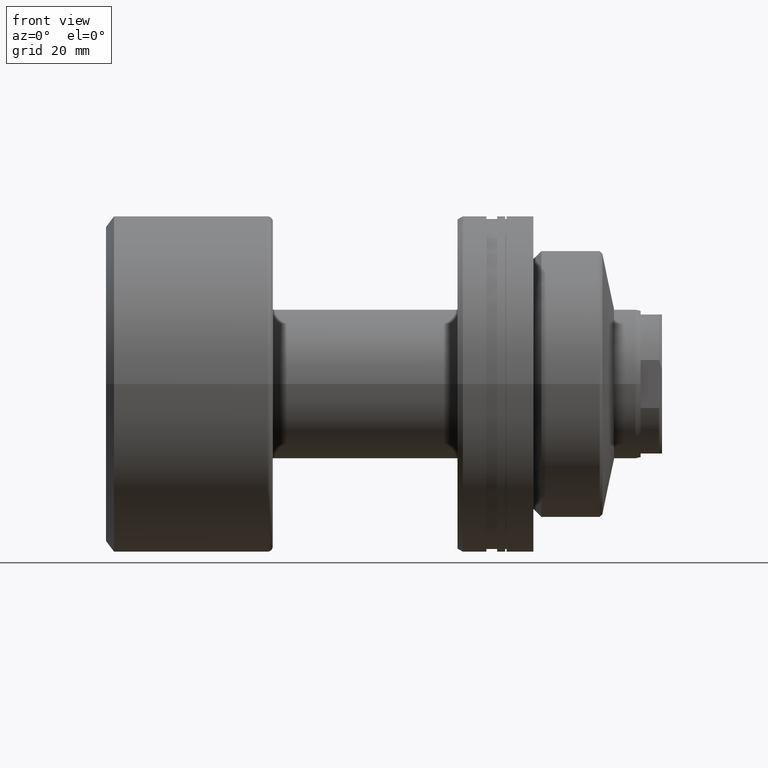
[diagram: clean part render]
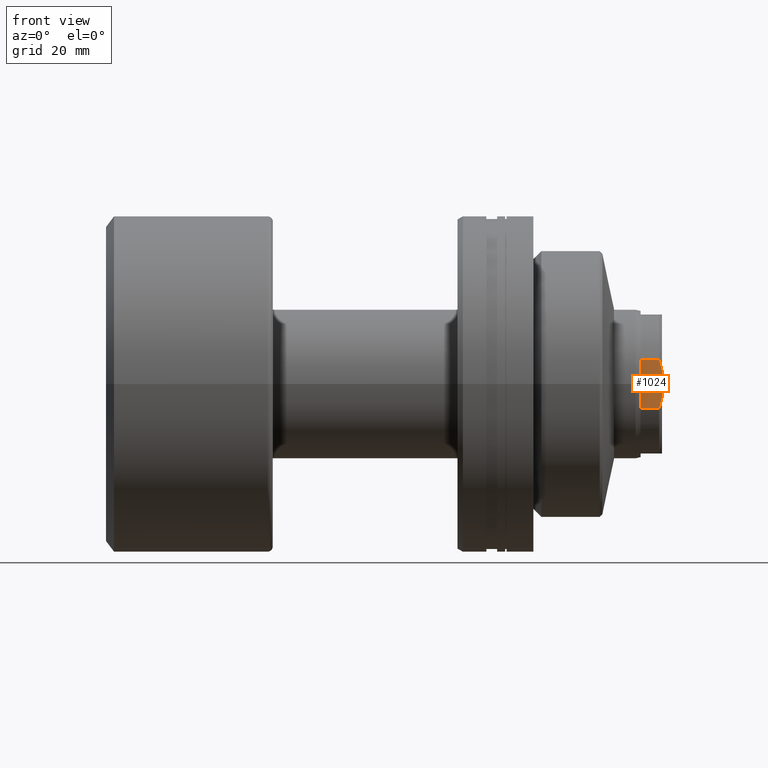
[diagram: same view with one face highlighted and labeled with its STEP entity id]
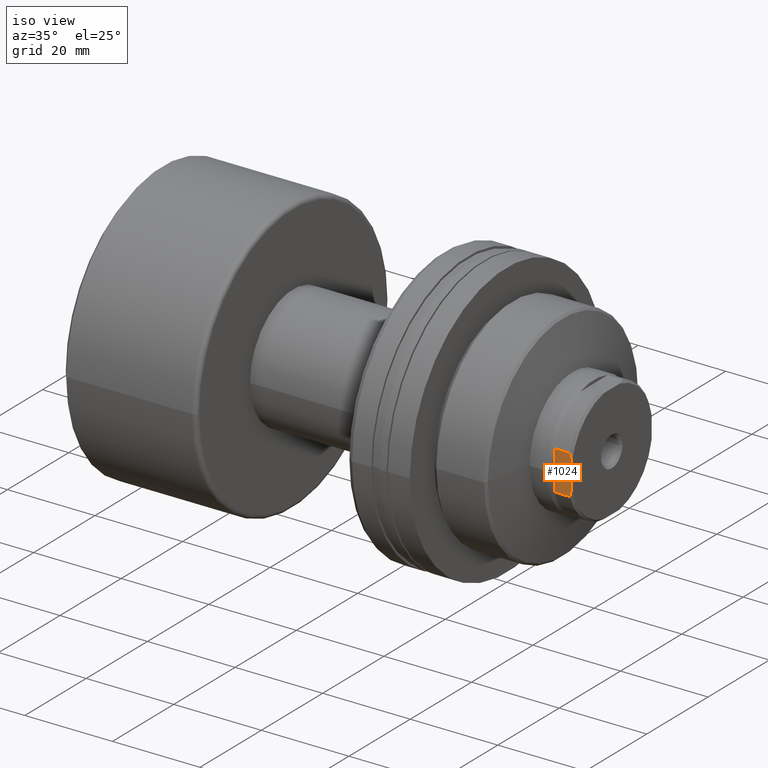
[diagram: same view with one face highlighted and labeled with its STEP entity id]
A machine part, front view. The second image highlights one B-rep face of the part: STEP entity #1024.
A second angle (iso view) of the same face is appended — the face is thin or edge-on in the first view.
In plain terms, the highlighted planar face has unit normal (0, 1, 0).
Its self-contained STEP definition (entity closure, byte-faithful):
#72 = B_SPLINE_CURVE_WITH_KNOTS ( 'NONE', 3,
 ( #2065, #1006, #1026, #1720 ),
 .UNSPECIFIED., .F., .F.,
 ( 4, 4 ),
 ( 6.909694533986145947E-16, 0.001981501470814368056 ),
 .UNSPECIFIED. ) ;
#126 = CARTESIAN_POINT ( 'NONE',  ( 103.5000000000000142, -13.00000000000118483, 4.479118216795496821 ) ) ;
#128 = CARTESIAN_POINT ( 'NONE',  ( 103.9999999999997868, -13.00000000000172307, 2.561737691481097645 ) ) ;
#189 = LINE ( 'NONE', #1400, #1965 ) ;
#207 = ORIENTED_EDGE ( 'NONE', *, *, #254, .F. ) ;
#225 = CARTESIAN_POINT ( 'NONE',  ( 99.99999999999978684, -13.00000000000218670, -4.479118216792421947 ) ) ;
#251 = AXIS2_PLACEMENT_3D ( 'NONE', #1920, #2139, #1252 ) ;
#254 = EDGE_CURVE ( 'NONE', #1508, #316, #833, .T. ) ;
#301 = VERTEX_POINT ( 'NONE', #821 ) ;
#316 = VERTEX_POINT ( 'NONE', #126 ) ;
#319 = DIRECTION ( 'NONE',  ( 0.000000000000000000, -3.872912908332386132E-16, 1.000000000000000000 ) ) ;
#332 = CARTESIAN_POINT ( 'NONE',  ( 103.5000000000000426, -13.00000000000224354, -4.479118216792421947 ) ) ;
#445 = DIRECTION ( 'NONE',  ( 1.000000000000000000, -1.657264799492230625E-14, -0.000000000000000000 ) ) ;
#451 = VERTEX_POINT ( 'NONE', #128 ) ;
#480 = VECTOR ( 'NONE', #2234, 1000.000000000000000 ) ;
#530 = EDGE_LOOP ( 'NONE', ( #1774, #2274, #902, #2209, #207, #2018 ) ) ;
#807 = CARTESIAN_POINT ( 'NONE',  ( 103.9999999999997868, -13.00000000000172307, 2.561737691481097645 ) ) ;
#821 = CARTESIAN_POINT ( 'NONE',  ( 104.0000000000000142, -13.00000000000171951, -2.561737691481324575 ) ) ;
#833 = LINE ( 'NONE', #1317, #1994 ) ;
#902 = ORIENTED_EDGE ( 'NONE', *, *, #1040, .T. ) ;
#932 = DIRECTION ( 'NONE',  ( 1.000000000000000000, -1.657264799492230625E-14, -0.000000000000000000 ) ) ;
#1006 = CARTESIAN_POINT ( 'NONE',  ( 103.7049463852701194, -13.00000000000018119, -3.849973670684600169 ) ) ;
#1024 = ADVANCED_FACE ( 'NONE', ( #2106 ), #1060, .F. ) ;
#1026 = CARTESIAN_POINT ( 'NONE',  ( 103.8743634208442899, -13.00000000000171951, -3.211564049327791270 ) ) ;
#1040 = EDGE_CURVE ( 'NONE', #301, #451, #189, .T. ) ;
#1060 = PLANE ( 'NONE',  #251 ) ;
#1175 = CARTESIAN_POINT ( 'NONE',  ( 99.99999999999978684, -13.00000000000218670, -4.479118216792421947 ) ) ;
#1252 = DIRECTION ( 'NONE',  ( -1.000000000000000000, 1.657264799492230625E-14, 0.000000000000000000 ) ) ;
#1271 = CARTESIAN_POINT ( 'NONE',  ( 99.99999999999978684, -13.00000000000112621, 4.479118216795496821 ) ) ;
#1294 = CARTESIAN_POINT ( 'NONE',  ( 103.7049463852683147, -13.00000000000171774, 3.849973670685839622 ) ) ;
#1297 = VECTOR ( 'NONE', #932, 1000.000000000000000 ) ;
#1317 = CARTESIAN_POINT ( 'NONE',  ( 99.99999999999978684, -13.00000000000112621, 4.479118216795496821 ) ) ;
#1400 = CARTESIAN_POINT ( 'NONE',  ( 103.9999999999997868, -13.00000000000171951, -4.479118216792240759 ) ) ;
#1508 = VERTEX_POINT ( 'NONE', #1271 ) ;
#1522 = CARTESIAN_POINT ( 'NONE',  ( 99.99999999999978684, -13.00000000000165379, -4.479118216792240759 ) ) ;
#1551 = VERTEX_POINT ( 'NONE', #332 ) ;
#1652 = EDGE_CURVE ( 'NONE', #1853, #1508, #1830, .T. ) ;
#1720 = CARTESIAN_POINT ( 'NONE',  ( 104.0000000000000142, -13.00000000000171951, -2.561737691481324575 ) ) ;
#1774 = ORIENTED_EDGE ( 'NONE', *, *, #2211, .T. ) ;
#1795 = EDGE_CURVE ( 'NONE', #451, #316, #1913, .T. ) ;
#1820 = CARTESIAN_POINT ( 'NONE',  ( 103.5000000000000142, -13.00000000000118483, 4.479118216795496821 ) ) ;
#1830 = LINE ( 'NONE', #1522, #480 ) ;
#1853 = VERTEX_POINT ( 'NONE', #1175 ) ;
#1913 = B_SPLINE_CURVE_WITH_KNOTS ( 'NONE', 3,
 ( #807, #1990, #1294, #1820 ),
 .UNSPECIFIED., .F., .F.,
 ( 4, 4 ),
 ( 5.637851296924623057E-17, 0.001981501470818259475 ),
 .UNSPECIFIED. ) ;
#1920 = CARTESIAN_POINT ( 'NONE',  ( 99.99999999999978684, -13.00000000000165379, -4.479118216792240759 ) ) ;
#1941 = EDGE_CURVE ( 'NONE', #1551, #301, #72, .T. ) ;
#1965 = VECTOR ( 'NONE', #319, 1000.000000000000000 ) ;
#1990 = CARTESIAN_POINT ( 'NONE',  ( 103.8743634208440056, -13.00000000000172129, 3.211564049329081794 ) ) ;
#1994 = VECTOR ( 'NONE', #445, 1000.000000000000000 ) ;
#2018 = ORIENTED_EDGE ( 'NONE', *, *, #1652, .F. ) ;
#2065 = CARTESIAN_POINT ( 'NONE',  ( 103.5000000000000426, -13.00000000000224354, -4.479118216792421947 ) ) ;
#2106 = FACE_OUTER_BOUND ( 'NONE', #530, .T. ) ;
#2139 = DIRECTION ( 'NONE',  ( 1.657264799492230625E-14, 1.000000000000000000, 3.872912908332386132E-16 ) ) ;
#2188 = LINE ( 'NONE', #225, #1297 ) ;
#2209 = ORIENTED_EDGE ( 'NONE', *, *, #1795, .T. ) ;
#2211 = EDGE_CURVE ( 'NONE', #1853, #1551, #2188, .T. ) ;
#2234 = DIRECTION ( 'NONE',  ( 0.000000000000000000, -3.872912908332386132E-16, 1.000000000000000000 ) ) ;
#2274 = ORIENTED_EDGE ( 'NONE', *, *, #1941, .T. ) ;